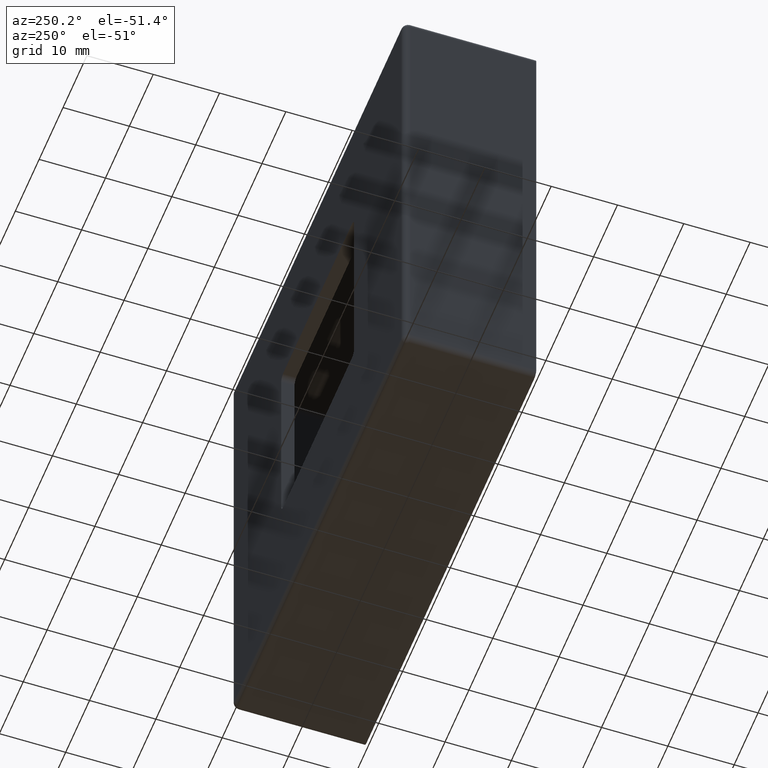
[diagram: clean part render]
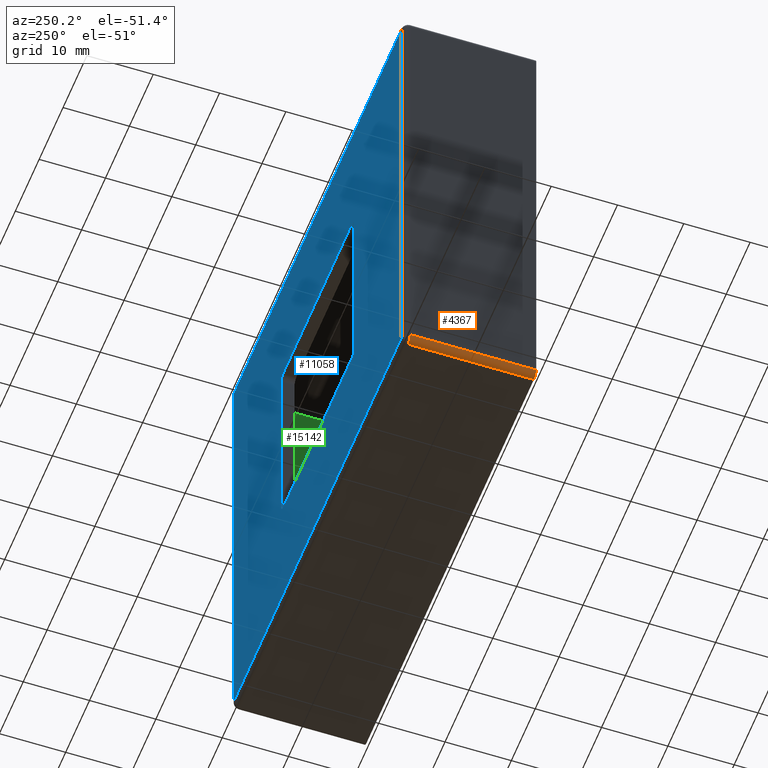
[diagram: same view with three faces highlighted in distinct colors, each labeled with its STEP entity id]
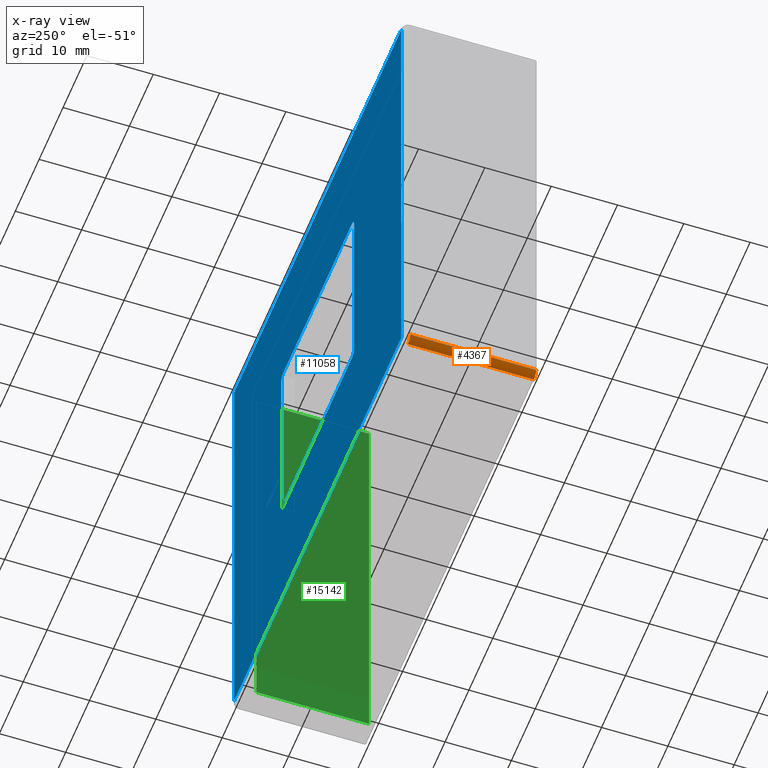
[diagram: x-ray of the same camera — body ghosted, the three highlighted faces saturated]
A machine part, auxiliary view with three faces highlighted in distinct colors.
The next image is the same camera in x-ray (body ghosted, the three faces saturated) — at least one of them is partly hidden behind the body in this view.
Their STEP definitions:

[orange] entity #4367 — the highlighted cylindrical surface (edge-blend (fillet) strip) has radius 1 mm, axis along (0, -1, 0).
#459 = CARTESIAN_POINT ( 'NONE',  ( -36.00000000000002132, 20.00000000000000000, -34.99999999999999289 ) ) ;
#1030 = DIRECTION ( 'NONE',  ( 0.000000000000000000, 0.000000000000000000, 1.000000000000000000 ) ) ;
#1170 = VECTOR ( 'NONE', #4202, 1000.000000000000000 ) ;
#2833 = EDGE_CURVE ( 'NONE', #5754, #11947, #6895, .T. ) ;
#2902 = EDGE_CURVE ( 'NONE', #16514, #6536, #17865, .T. ) ;
#3126 = ORIENTED_EDGE ( 'NONE', *, *, #15123, .F. ) ;
#3336 = EDGE_LOOP ( 'NONE', ( #7025, #7422, #3126, #16409 ) ) ;
#3805 = CYLINDRICAL_SURFACE ( 'NONE', #11155, 1.000000000000000888 ) ;
#3810 = EDGE_CURVE ( 'NONE', #11947, #16514, #15000, .T. ) ;
#3834 = DIRECTION ( 'NONE',  ( 0.000000000000000000, -1.000000000000000000, 0.000000000000000000 ) ) ;
#3885 = CARTESIAN_POINT ( 'NONE',  ( -35.00000000000001421, 20.00000000000000000, -34.99999999999999289 ) ) ;
#4202 = DIRECTION ( 'NONE',  ( -0.000000000000000000, 1.000000000000000000, -0.000000000000000000 ) ) ;
#4367 = ADVANCED_FACE ( 'NONE', ( #9739 ), #3805, .T. ) ;
#4794 = AXIS2_PLACEMENT_3D ( 'NONE', #13310, #7780, #16218 ) ;
#5754 = VERTEX_POINT ( 'NONE', #10076 ) ;
#6239 = CIRCLE ( 'NONE', #9804, 1.000000000000000888 ) ;
#6536 = VERTEX_POINT ( 'NONE', #9805 ) ;
#6640 = CARTESIAN_POINT ( 'NONE',  ( -35.00000000000001421, 19.00000000000000000, -34.99999999999999289 ) ) ;
#6694 = CARTESIAN_POINT ( 'NONE',  ( -35.00000000000001421, 0.000000000000000000, -36.00000000000000000 ) ) ;
#6746 = DIRECTION ( 'NONE',  ( 0.000000000000000000, 1.000000000000000000, 0.000000000000000000 ) ) ;
#6895 = LINE ( 'NONE', #459, #14346 ) ;
#7025 = ORIENTED_EDGE ( 'NONE', *, *, #3810, .F. ) ;
#7422 = ORIENTED_EDGE ( 'NONE', *, *, #2833, .F. ) ;
#7780 = DIRECTION ( 'NONE',  ( -0.000000000000000000, -1.000000000000000000, -0.000000000000000000 ) ) ;
#9084 = DIRECTION ( 'NONE',  ( 0.000000000000000000, -1.000000000000000000, 0.000000000000000000 ) ) ;
#9739 = FACE_OUTER_BOUND ( 'NONE', #3336, .T. ) ;
#9804 = AXIS2_PLACEMENT_3D ( 'NONE', #6640, #6746, #1030 ) ;
#9805 = CARTESIAN_POINT ( 'NONE',  ( -35.00000000000001421, 19.00000000000000000, -36.00000000000000000 ) ) ;
#10076 = CARTESIAN_POINT ( 'NONE',  ( -36.00000000000002132, 19.00000000000000000, -34.99999999999999289 ) ) ;
#10954 = DIRECTION ( 'NONE',  ( 0.000000000000000000, 0.000000000000000000, -1.000000000000000000 ) ) ;
#11155 = AXIS2_PLACEMENT_3D ( 'NONE', #3885, #3834, #10954 ) ;
#11947 = VERTEX_POINT ( 'NONE', #14481 ) ;
#13310 = CARTESIAN_POINT ( 'NONE',  ( -35.00000000000001421, 0.000000000000000000, -34.99999999999999289 ) ) ;
#13831 = CARTESIAN_POINT ( 'NONE',  ( -35.00000000000001421, 20.00000000000000000, -36.00000000000000000 ) ) ;
#14346 = VECTOR ( 'NONE', #9084, 1000.000000000000000 ) ;
#14481 = CARTESIAN_POINT ( 'NONE',  ( -36.00000000000002132, 0.000000000000000000, -34.99999999999999289 ) ) ;
#15000 = CIRCLE ( 'NONE', #4794, 1.000000000000000888 ) ;
#15123 = EDGE_CURVE ( 'NONE', #6536, #5754, #6239, .T. ) ;
#16218 = DIRECTION ( 'NONE',  ( 0.000000000000000000, 0.000000000000000000, 1.000000000000000000 ) ) ;
#16409 = ORIENTED_EDGE ( 'NONE', *, *, #2902, .F. ) ;
#16514 = VERTEX_POINT ( 'NONE', #6694 ) ;
#17865 = LINE ( 'NONE', #13831, #1170 ) ;

[blue] entity #11058 — the highlighted planar face has unit normal (0, 1, 0).
#13 = ORIENTED_EDGE ( 'NONE', *, *, #226, .F. ) ;
#226 = EDGE_CURVE ( 'NONE', #6773, #1079, #8236, .T. ) ;
#261 = ORIENTED_EDGE ( 'NONE', *, *, #12028, .F. ) ;
#269 = CARTESIAN_POINT ( 'NONE',  ( 34.99999999999997868, 20.00000000000000000, -36.00000000000000711 ) ) ;
#417 = VECTOR ( 'NONE', #5041, 1000.000000000000000 ) ;
#419 = ORIENTED_EDGE ( 'NONE', *, *, #5459, .T. ) ;
#929 = VERTEX_POINT ( 'NONE', #17197 ) ;
#974 = EDGE_CURVE ( 'NONE', #10371, #17160, #15256, .T. ) ;
#1079 = VERTEX_POINT ( 'NONE', #13180 ) ;
#1164 = ORIENTED_EDGE ( 'NONE', *, *, #974, .T. ) ;
#1223 = LINE ( 'NONE', #5067, #15714 ) ;
#1239 = EDGE_CURVE ( 'NONE', #3687, #1079, #17225, .T. ) ;
#1247 = PLANE ( 'NONE',  #8826 ) ;
#1372 = CARTESIAN_POINT ( 'NONE',  ( 35.99999999999999289, 20.00000000000000000, 34.99999999999999289 ) ) ;
#1494 = EDGE_CURVE ( 'NONE', #14200, #15472, #9997, .T. ) ;
#1905 = ORIENTED_EDGE ( 'NONE', *, *, #12791, .T. ) ;
#1927 = VERTEX_POINT ( 'NONE', #4485 ) ;
#2528 = VECTOR ( 'NONE', #10588, 1000.000000000000000 ) ;
#2550 = ORIENTED_EDGE ( 'NONE', *, *, #10855, .F. ) ;
#2864 = DIRECTION ( 'NONE',  ( 0.000000000000000000, 1.000000000000000000, 0.000000000000000000 ) ) ;
#2899 = CIRCLE ( 'NONE', #15959, 1.000000000000000888 ) ;
#3374 = DIRECTION ( 'NONE',  ( 1.137523590804463822E-16, 0.000000000000000000, 1.000000000000000000 ) ) ;
#3511 = AXIS2_PLACEMENT_3D ( 'NONE', #6714, #15040, #5145 ) ;
#3687 = VERTEX_POINT ( 'NONE', #14445 ) ;
#3689 = CARTESIAN_POINT ( 'NONE',  ( 34.99999999999997868, 20.00000000000000000, -35.00000000000000000 ) ) ;
#3904 = FACE_OUTER_BOUND ( 'NONE', #4429, .T. ) ;
#3966 = DIRECTION ( 'NONE',  ( -0.000000000000000000, -1.000000000000000000, -0.000000000000000000 ) ) ;
#4399 = LINE ( 'NONE', #1372, #12119 ) ;
#4429 = EDGE_LOOP ( 'NONE', ( #10862, #8804, #1164, #1905 ) ) ;
#4462 = DIRECTION ( 'NONE',  ( -2.891205793294678819E-16, 0.000000000000000000, -1.000000000000000000 ) ) ;
#4485 = CARTESIAN_POINT ( 'NONE',  ( -15.24999999999999289, 20.00000000000000000, 14.24999999999999467 ) ) ;
#5041 = DIRECTION ( 'NONE',  ( -1.000000000000000000, -0.000000000000000000, -0.000000000000000000 ) ) ;
#5067 = CARTESIAN_POINT ( 'NONE',  ( -15.24999999999999289, 20.00000000000000000, 15.25000000000000355 ) ) ;
#5087 = DIRECTION ( 'NONE',  ( -1.000000000000000000, 0.000000000000000000, 9.637352644315597708E-17 ) ) ;
#5145 = DIRECTION ( 'NONE',  ( 2.081668171172166620E-14, 0.000000000000000000, 1.000000000000000000 ) ) ;
#5459 = EDGE_CURVE ( 'NONE', #14186, #12689, #2899, .T. ) ;
#5498 = CARTESIAN_POINT ( 'NONE',  ( -14.24999999999999112, 20.00000000000000000, 15.25000000000000355 ) ) ;
#5647 = LINE ( 'NONE', #14807, #9811 ) ;
#6050 = CARTESIAN_POINT ( 'NONE',  ( 15.25000000000000000, 20.00000000000000000, -15.24999999999999645 ) ) ;
#6324 = CARTESIAN_POINT ( 'NONE',  ( -15.24999999999999645, 20.00000000000000000, -15.24999999999999645 ) ) ;
#6651 = EDGE_CURVE ( 'NONE', #6773, #929, #13438, .T. ) ;
#6714 = CARTESIAN_POINT ( 'NONE',  ( 14.25000000000000533, 20.00000000000000000, 14.25000000000000178 ) ) ;
#6726 = VERTEX_POINT ( 'NONE', #5498 ) ;
#6773 = VERTEX_POINT ( 'NONE', #11440 ) ;
#7195 = CARTESIAN_POINT ( 'NONE',  ( -14.24999999999999112, 20.00000000000000000, 14.25000000000000178 ) ) ;
#7613 = EDGE_CURVE ( 'NONE', #3687, #12689, #16239, .T. ) ;
#7774 = EDGE_CURVE ( 'NONE', #15472, #10371, #4399, .T. ) ;
#7875 = DIRECTION ( 'NONE',  ( 1.000000000000000000, 0.000000000000000000, 0.000000000000000000 ) ) ;
#7984 = ORIENTED_EDGE ( 'NONE', *, *, #1239, .T. ) ;
#8236 = LINE ( 'NONE', #6050, #10205 ) ;
#8722 = DIRECTION ( 'NONE',  ( 0.000000000000000000, 0.000000000000000000, 1.000000000000000000 ) ) ;
#8804 = ORIENTED_EDGE ( 'NONE', *, *, #7774, .T. ) ;
#8826 = AXIS2_PLACEMENT_3D ( 'NONE', #14031, #2864, #11340 ) ;
#8977 = CIRCLE ( 'NONE', #17019, 1.000000000000000888 ) ;
#9004 = CARTESIAN_POINT ( 'NONE',  ( -35.00000000000000711, 20.00000000000000000, -34.99999999999999289 ) ) ;
#9079 = CARTESIAN_POINT ( 'NONE',  ( -15.24999999999999645, 20.00000000000000000, -15.24999999999999645 ) ) ;
#9367 = EDGE_LOOP ( 'NONE', ( #13, #11950, #261, #9546, #2550, #419, #9778, #7984 ) ) ;
#9536 = DIRECTION ( 'NONE',  ( 0.000000000000000000, 0.000000000000000000, 1.000000000000000000 ) ) ;
#9546 = ORIENTED_EDGE ( 'NONE', *, *, #10253, .T. ) ;
#9778 = ORIENTED_EDGE ( 'NONE', *, *, #7613, .F. ) ;
#9811 = VECTOR ( 'NONE', #5087, 1000.000000000000000 ) ;
#9813 = CARTESIAN_POINT ( 'NONE',  ( -35.00000000000000000, 20.00000000000000000, 34.99999999999999289 ) ) ;
#9997 = LINE ( 'NONE', #13100, #2528 ) ;
#10205 = VECTOR ( 'NONE', #13101, 1000.000000000000000 ) ;
#10253 = EDGE_CURVE ( 'NONE', #6726, #1927, #8977, .T. ) ;
#10371 = VERTEX_POINT ( 'NONE', #14601 ) ;
#10588 = DIRECTION ( 'NONE',  ( 9.637352644315597708E-17, -0.000000000000000000, 1.000000000000000000 ) ) ;
#10675 = AXIS2_PLACEMENT_3D ( 'NONE', #15234, #3966, #13779 ) ;
#10855 = EDGE_CURVE ( 'NONE', #14186, #1927, #12067, .T. ) ;
#10862 = ORIENTED_EDGE ( 'NONE', *, *, #1494, .T. ) ;
#11058 = ADVANCED_FACE ( 'NONE', ( #15751, #3904 ), #1247, .T. ) ;
#11172 = VECTOR ( 'NONE', #3374, 1000.000000000000000 ) ;
#11340 = DIRECTION ( 'NONE',  ( 0.000000000000000000, -0.000000000000000000, 1.000000000000000000 ) ) ;
#11440 = CARTESIAN_POINT ( 'NONE',  ( 15.25000000000000711, 20.00000000000000000, 14.24999999999999467 ) ) ;
#11950 = ORIENTED_EDGE ( 'NONE', *, *, #6651, .T. ) ;
#12028 = EDGE_CURVE ( 'NONE', #6726, #929, #1223, .T. ) ;
#12067 = LINE ( 'NONE', #9079, #11172 ) ;
#12119 = VECTOR ( 'NONE', #16656, 1000.000000000000000 ) ;
#12689 = VERTEX_POINT ( 'NONE', #16154 ) ;
#12791 = EDGE_CURVE ( 'NONE', #17160, #14200, #5647, .T. ) ;
#13100 = CARTESIAN_POINT ( 'NONE',  ( -35.00000000000000000, 20.00000000000000000, 35.99999999999999289 ) ) ;
#13101 = DIRECTION ( 'NONE',  ( -2.275047181608927644E-16, -0.000000000000000000, -1.000000000000000000 ) ) ;
#13180 = CARTESIAN_POINT ( 'NONE',  ( 15.25000000000000000, 20.00000000000000000, -14.24999999999999467 ) ) ;
#13189 = CARTESIAN_POINT ( 'NONE',  ( -15.24999999999999645, 20.00000000000000000, -14.24999999999999467 ) ) ;
#13438 = CIRCLE ( 'NONE', #3511, 1.000000000000000888 ) ;
#13743 = VECTOR ( 'NONE', #4462, 1000.000000000000000 ) ;
#13779 = DIRECTION ( 'NONE',  ( 0.000000000000000000, 0.000000000000000000, 1.000000000000000000 ) ) ;
#14031 = CARTESIAN_POINT ( 'NONE',  ( 0.000000000000000000, 20.00000000000000000, 0.000000000000000000 ) ) ;
#14186 = VERTEX_POINT ( 'NONE', #13189 ) ;
#14200 = VERTEX_POINT ( 'NONE', #9004 ) ;
#14445 = CARTESIAN_POINT ( 'NONE',  ( 14.24999999999999822, 20.00000000000000000, -15.24999999999999645 ) ) ;
#14601 = CARTESIAN_POINT ( 'NONE',  ( 34.99999999999999289, 20.00000000000000000, 34.99999999999999289 ) ) ;
#14807 = CARTESIAN_POINT ( 'NONE',  ( -36.00000000000002132, 20.00000000000000000, -34.99999999999999289 ) ) ;
#14984 = CARTESIAN_POINT ( 'NONE',  ( -14.24999999999999467, 20.00000000000000000, -14.24999999999999467 ) ) ;
#15040 = DIRECTION ( 'NONE',  ( -0.000000000000000000, -1.000000000000000000, -0.000000000000000000 ) ) ;
#15234 = CARTESIAN_POINT ( 'NONE',  ( 14.24999999999999822, 20.00000000000000000, -14.24999999999999467 ) ) ;
#15256 = LINE ( 'NONE', #269, #13743 ) ;
#15472 = VERTEX_POINT ( 'NONE', #9813 ) ;
#15594 = DIRECTION ( 'NONE',  ( -0.000000000000000000, -1.000000000000000000, -0.000000000000000000 ) ) ;
#15714 = VECTOR ( 'NONE', #7875, 1000.000000000000000 ) ;
#15751 = FACE_BOUND ( 'NONE', #9367, .T. ) ;
#15959 = AXIS2_PLACEMENT_3D ( 'NONE', #14984, #17920, #9536 ) ;
#16154 = CARTESIAN_POINT ( 'NONE',  ( -14.24999999999999467, 20.00000000000000000, -15.24999999999999645 ) ) ;
#16239 = LINE ( 'NONE', #6324, #417 ) ;
#16656 = DIRECTION ( 'NONE',  ( 1.000000000000000000, -0.000000000000000000, 0.000000000000000000 ) ) ;
#17019 = AXIS2_PLACEMENT_3D ( 'NONE', #7195, #15594, #8722 ) ;
#17160 = VERTEX_POINT ( 'NONE', #3689 ) ;
#17197 = CARTESIAN_POINT ( 'NONE',  ( 14.24999999999999822, 20.00000000000000000, 15.25000000000000355 ) ) ;
#17225 = CIRCLE ( 'NONE', #10675, 1.000000000000000888 ) ;
#17920 = DIRECTION ( 'NONE',  ( -0.000000000000000000, -1.000000000000000000, -0.000000000000000000 ) ) ;

[green] entity #15142 — the highlighted planar face has unit normal (-1, 0, 0).
#1085 = DIRECTION ( 'NONE',  ( 2.891205793294678819E-16, 0.000000000000000000, 1.000000000000000000 ) ) ;
#1460 = CARTESIAN_POINT ( 'NONE',  ( 33.99999999999996447, 0.000000000000000000, -33.00000000000000000 ) ) ;
#2012 = CARTESIAN_POINT ( 'NONE',  ( 33.99999999999998579, 17.00000000000000000, 32.99999999999998579 ) ) ;
#2634 = CARTESIAN_POINT ( 'NONE',  ( 33.99999999999998579, 0.000000000000000000, 32.99999999999998579 ) ) ;
#3924 = DIRECTION ( 'NONE',  ( -2.891205793294678819E-16, 0.000000000000000000, -1.000000000000000000 ) ) ;
#3965 = VERTEX_POINT ( 'NONE', #4559 ) ;
#4294 = CARTESIAN_POINT ( 'NONE',  ( 33.99999999999998579, 18.00000000000000355, 32.99999999999998579 ) ) ;
#4387 = VERTEX_POINT ( 'NONE', #1460 ) ;
#4559 = CARTESIAN_POINT ( 'NONE',  ( 33.99999999999996447, 17.00000000000000000, -33.00000000000000000 ) ) ;
#5240 = CARTESIAN_POINT ( 'NONE',  ( 33.99999999999996447, 17.00000000000000000, -36.00000000000000711 ) ) ;
#5427 = DIRECTION ( 'NONE',  ( -2.891205793294678819E-16, 0.000000000000000000, -1.000000000000000000 ) ) ;
#5711 = LINE ( 'NONE', #4294, #6347 ) ;
#6137 = EDGE_CURVE ( 'NONE', #17601, #4387, #12138, .T. ) ;
#6304 = ORIENTED_EDGE ( 'NONE', *, *, #15454, .T. ) ;
#6347 = VECTOR ( 'NONE', #15560, 1000.000000000000000 ) ;
#6867 = CARTESIAN_POINT ( 'NONE',  ( 33.99999999999996447, 0.000000000000000000, -33.00000000000000000 ) ) ;
#7689 = VERTEX_POINT ( 'NONE', #2012 ) ;
#9336 = PLANE ( 'NONE',  #16365 ) ;
#9703 = VECTOR ( 'NONE', #5427, 1000.000000000000000 ) ;
#9741 = VECTOR ( 'NONE', #3924, 1000.000000000000000 ) ;
#9816 = ORIENTED_EDGE ( 'NONE', *, *, #14059, .T. ) ;
#9936 = DIRECTION ( 'NONE',  ( 0.000000000000000000, -1.000000000000000000, 0.000000000000000000 ) ) ;
#9968 = LINE ( 'NONE', #5240, #9741 ) ;
#10813 = ORIENTED_EDGE ( 'NONE', *, *, #6137, .F. ) ;
#10879 = DIRECTION ( 'NONE',  ( -1.000000000000000000, 0.000000000000000000, 2.891205793294678819E-16 ) ) ;
#11069 = CARTESIAN_POINT ( 'NONE',  ( 33.99999999999996447, 0.000000000000000000, -36.00000000000000711 ) ) ;
#11631 = ORIENTED_EDGE ( 'NONE', *, *, #15207, .T. ) ;
#12138 = LINE ( 'NONE', #11069, #9703 ) ;
#12242 = CARTESIAN_POINT ( 'NONE',  ( 33.99999999999996447, 20.00000000000000000, -36.00000000000000711 ) ) ;
#13032 = FACE_OUTER_BOUND ( 'NONE', #13879, .T. ) ;
#13879 = EDGE_LOOP ( 'NONE', ( #11631, #6304, #10813, #9816 ) ) ;
#13906 = LINE ( 'NONE', #6867, #14130 ) ;
#14059 = EDGE_CURVE ( 'NONE', #17601, #7689, #5711, .T. ) ;
#14130 = VECTOR ( 'NONE', #9936, 1000.000000000000000 ) ;
#15142 = ADVANCED_FACE ( 'NONE', ( #13032 ), #9336, .T. ) ;
#15207 = EDGE_CURVE ( 'NONE', #7689, #3965, #9968, .T. ) ;
#15454 = EDGE_CURVE ( 'NONE', #3965, #4387, #13906, .T. ) ;
#15560 = DIRECTION ( 'NONE',  ( -0.000000000000000000, 1.000000000000000000, -0.000000000000000000 ) ) ;
#16365 = AXIS2_PLACEMENT_3D ( 'NONE', #12242, #10879, #1085 ) ;
#17601 = VERTEX_POINT ( 'NONE', #2634 ) ;